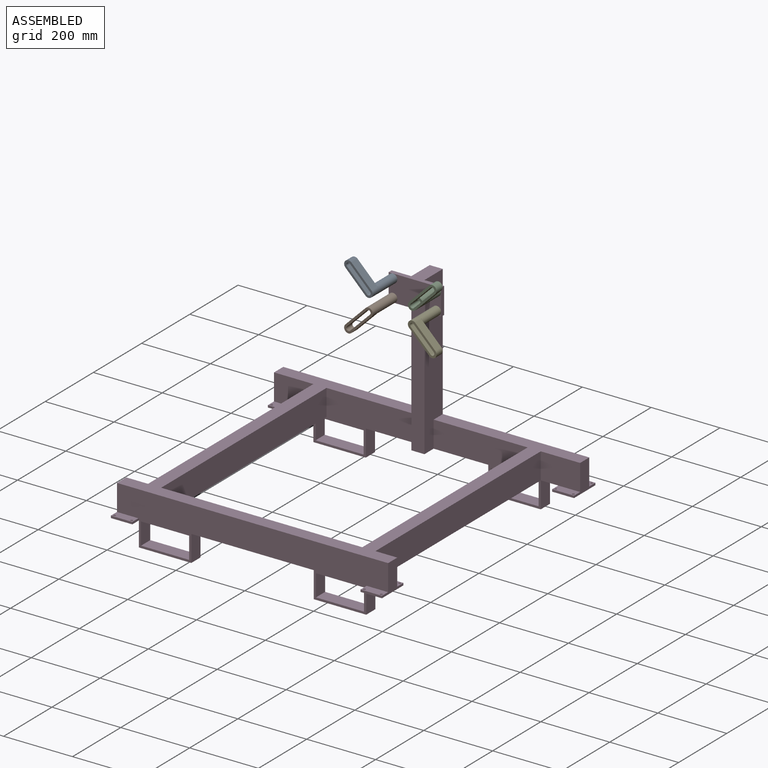
[diagram: assembled view]
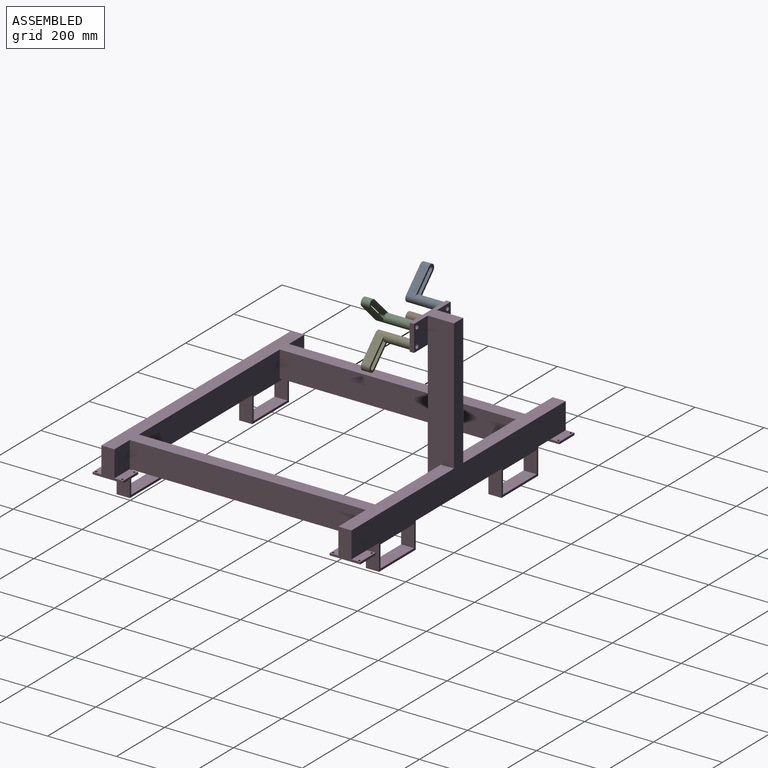
[diagram: assembled view, second angle]
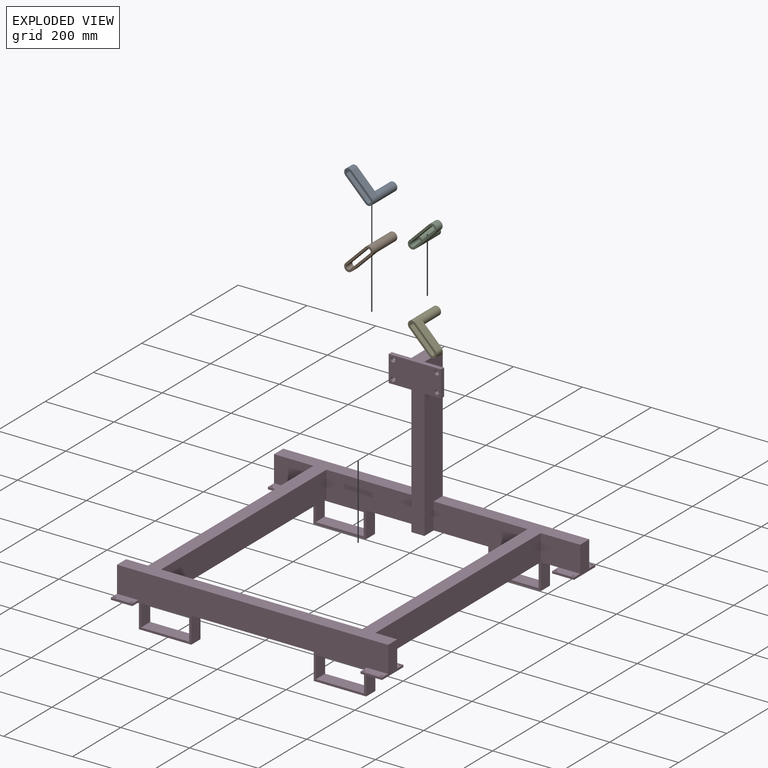
[diagram: exploded view]
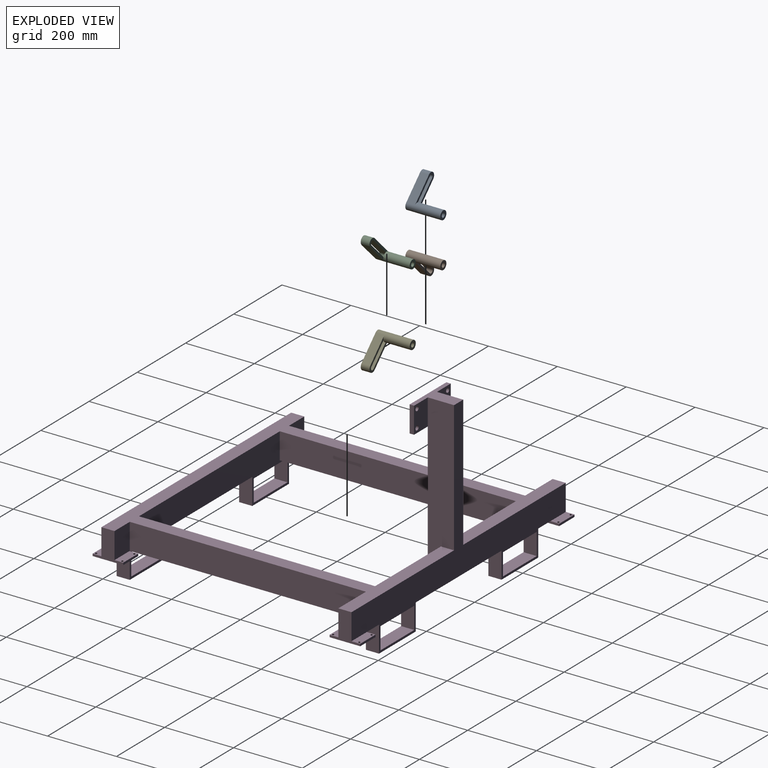
[diagram: exploded view, second angle]
ASSEMBLY  parts=5 mates=4
PART A: 14 faces, bbox 107.4x101.6x25.4 mm
  f0: plane 12.7x12.7mm, normal (0,-1,0), area 91mm2, adj f1,f2,f9,f11
  f1: cylinder r=6.35mm len=101.6mm, axis (0,-1,0), area 3547mm2, adj f0,f3,f9,f11,f13
  f2: cylinder r=12.7mm len=76.2mm, axis (0,-1,0), area 6080.5mm2, adj f0,f3,f4,f5
  f3: plane 25.4x25.4mm, normal (0,1,0), area 380mm2, adj f1,f2
  f4: plane 25.4x14.3mm, normal (0,-1,0), area 4.3mm2, adj f2,f6,f7,f8
  f5: plane 93.05x25.2mm, normal (0,1,0), area 1112.5mm2, adj f2,f6,f8,f9,f10,f11,f12
  f6: plane 82.05x25.4mm, normal (0,0,1), area 2084.1mm2, adj f4,f5,f7,f12,f13
  f7: cylinder r=12.6mm len=25.4mm, axis (0,1,0), area 1005.3mm2, adj f4,f6,f8,f13
  f8: plane 82.05x25.4mm, normal (0,0,-1), area 2084.1mm2, adj f4,f5,f7,f12,f13
  f9: plane 82.05x25.4mm, normal (0,0,-1), area 2084.1mm2, adj f0,f1,f5,f10,f13
  f10: cylinder r=6.35mm len=25.4mm, axis (0,1,0), area 506.7mm2, adj f5,f9,f11,f13
  f11: plane 82.05x25.4mm, normal (0,0,1), area 2084.1mm2, adj f0,f1,f5,f10,f13
  f12: cylinder r=12.6mm len=25.4mm, axis (0,1,0), area 1005.3mm2, adj f5,f6,f8,f13
  f13: plane 107.25x25.2mm, normal (0,-1,0), area 1397.3mm2, adj f1,f6,f7,f8,f9,f10,f11,f12
PART B: same geometry as A
PART C: same geometry as A
PART D: 108 faces, bbox 889x812.8x533.4 mm
  f0: plane 50.8x38.1mm, normal (0,0,-1), area 1935.5mm2, adj f4,f22,f55,f100
  f1: plane 381x38.1mm, normal (0,-1,0), area 14516.1mm2, adj f9,f73,f74,f80
  f2: plane 311.15x152.4mm, normal (0,-1,0), area 23548.3mm2, adj f3,f8,f9,f24,f54,f55,f56,f65
  f3: plane 889x762mm, normal (0,0,1), area 114677.2mm2, adj f2,f4,f5,f6,f7,f15,f16,f17
  f4: plane 889x533.4mm, normal (0,1,0), area 87741.8mm2, adj f0,f3,f9,f12,f48,f49,f50,f54
  f5: plane 787.4x152.4mm, normal (0,-1,0), area 65483.7mm2, adj f3,f10,f11,f13,f18,f19,f25,f35
  f6: plane 311.15x152.4mm, normal (0,-1,0), area 23548.3mm2, adj f3,f9,f14,f23,f48,f49,f50,f69
  f7: plane 660.4x152.4mm, normal (0,1,0), area 49999.9mm2, adj f3,f8,f10,f14,f23,f24,f45,f46
  f8: plane 685.8x38.1mm, normal (0,0,-1), area 26129mm2, adj f2,f7,f21,f24
  f9: plane 355.6x76.2mm, normal (0,0,-1), area 15000mm2, adj f1,f2,f4,f6,f49,f54,f73,f74
  f10: plane 355.6x38.1mm, normal (0,0,-1), area 13548.4mm2, adj f5,f7,f45,f51
  f11: plane 38.1x1.27mm, normal (0,0,-1), area 48.4mm2, adj f5,f20,f38,f52
  f12: plane 50.8x38.1mm, normal (0,0,-1), area 1935.5mm2, adj f4,f15,f48,f92
  f13: plane 38.1x1.27mm, normal (0,0,-1), area 48.4mm2, adj f5,f17,f28,f46
  f14: plane 685.8x38.1mm, normal (0,0,-1), area 26129mm2, adj f6,f7,f16,f23
  f15: plane 114.3x76.2mm, normal (0,-1,0), area 8709.7mm2, adj f3,f12,f16,f87,f97
  f16: plane 685.8x76.2mm, normal (-1,0,0), area 52258mm2, adj f3,f14,f15,f17
  f17: plane 76.2x63.5mm, normal (0,1,0), area 4838.7mm2, adj f3,f13,f16,f18,f26
  f18: plane 88.9x82.55mm, normal (-1,0,0), area 3467.7mm2, adj f3,f5,f17,f25,f26,f27,f29,f34
  f19: plane 88.9x82.55mm, normal (1,0,0), area 3467.7mm2, adj f3,f5,f20,f35,f36,f37,f42,f44
  f20: plane 76.2x63.5mm, normal (0,1,0), area 4838.7mm2, adj f3,f11,f19,f21,f36
  f21: plane 685.8x76.2mm, normal (1,0,0), area 52258mm2, adj f3,f8,f20,f22
  f22: plane 114.3x76.2mm, normal (0,-1,0), area 8709.7mm2, adj f0,f3,f21,f86,f107
  f23: plane 685.8x76.2mm, normal (1,0,0), area 52258mm2, adj f3,f6,f7,f14
  f24: plane 685.8x76.2mm, normal (-1,0,0), area 52258mm2, adj f2,f3,f7,f8
  f25: plane 62.23x25.4mm, normal (0,0,1), area 1517.3mm2, adj f5,f18,f28,f29,f31,f32
  f26: plane 62.23x25.4mm, normal (0,0,1), area 1517.3mm2, adj f17,f18,f27,f28,f30,f33
  f27: plane 62.23x6.35mm, normal (0,1,0), area 395.2mm2, adj f18,f26,f28,f34
  f28: plane 88.9x6.35mm, normal (1,0,0), area 564.5mm2, adj f13,f25,f26,f27,f29,f34
  f29: plane 62.23x6.35mm, normal (0,-1,0), area 395.2mm2, adj f18,f25,f28,f34
  f30: cylinder r=3.17mm len=6.35mm, axis (0,0,1), area 126.7mm2, adj f26,f34
  f31: cylinder r=3.17mm len=6.35mm, axis (0,0,1), area 126.7mm2, adj f25,f34
  f32: cylinder r=3.17mm len=6.35mm, axis (0,0,1), area 126.7mm2, adj f25,f34
  f33: cylinder r=3.17mm len=6.35mm, axis (0,0,1), area 126.7mm2, adj f26,f34
  f34: plane 88.9x62.23mm, normal (0,0,-1), area 5405.6mm2, adj f18,f27,f28,f29,f30,f31,f32,f33
  f35: plane 62.23x25.4mm, normal (0,0,1), area 1517.3mm2, adj f5,f19,f37,f38,f40,f41
  f36: plane 62.23x25.4mm, normal (0,0,1), area 1517.3mm2, adj f19,f20,f38,f39,f42,f43
  f37: plane 62.23x6.35mm, normal (0,-1,0), area 395.2mm2, adj f19,f35,f38,f44
  f38: plane 88.9x6.35mm, normal (-1,0,0), area 564.5mm2, adj f11,f35,f36,f37,f42,f44
  f39: cylinder r=3.17mm len=6.35mm, axis (0,0,1), area 126.7mm2, adj f36,f44
  f40: cylinder r=3.17mm len=6.35mm, axis (0,0,1), area 126.7mm2, adj f35,f44
  f41: cylinder r=3.17mm len=6.35mm, axis (0,0,1), area 126.7mm2, adj f35,f44
  f42: plane 62.23x6.35mm, normal (0,1,0), area 395.2mm2, adj f19,f36,f38,f44
  f43: cylinder r=3.17mm len=6.35mm, axis (0,0,1), area 126.7mm2, adj f36,f44
  f44: plane 88.9x62.23mm, normal (0,0,-1), area 5405.6mm2, adj f19,f37,f38,f39,f40,f41,f42,f43
  f45: plane 76.2x38.1mm, normal (1,0,0), area 2903.2mm2, adj f5,f7,f10,f47
  f46: plane 76.2x38.1mm, normal (-1,0,0), area 2903.2mm2, adj f5,f7,f13,f47
  f47: plane 152.4x38.1mm, normal (0,0,-1), area 5806.4mm2, adj f5,f7,f45,f46
  f48: plane 76.2x38.1mm, normal (-1,0,0), area 2903.2mm2, adj f4,f6,f12,f50
  f49: plane 76.2x38.1mm, normal (1,0,0), area 2903.2mm2, adj f4,f6,f9,f50
  f50: plane 152.4x38.1mm, normal (0,0,-1), area 5806.4mm2, adj f4,f6,f48,f49
  f51: plane 76.2x38.1mm, normal (-1,0,0), area 2903.2mm2, adj f5,f7,f10,f53
  f52: plane 76.2x38.1mm, normal (1,0,0), area 2903.2mm2, adj f5,f7,f11,f53
  f53: plane 152.4x38.1mm, normal (0,0,-1), area 5806.4mm2, adj f5,f7,f51,f52
  f54: plane 76.2x38.1mm, normal (-1,0,0), area 2903.2mm2, adj f2,f4,f9,f56
  f55: plane 76.2x38.1mm, normal (1,0,0), area 2903.2mm2, adj f0,f2,f4,f56
  f56: plane 152.4x38.1mm, normal (0,0,-1), area 5806.4mm2, adj f2,f4,f54,f55
  f57: plane 139.7x38.1mm, normal (0,0,-1), area 5322.6mm2, adj f5,f7,f58,f60
  f58: plane 63.5x38.1mm, normal (-1,0,0), area 2419.4mm2, adj f5,f7,f57,f59
  f59: plane 139.7x38.1mm, normal (0,0,1), area 5322.6mm2, adj f5,f7,f58,f60
  f60: plane 63.5x38.1mm, normal (1,0,0), area 2419.4mm2, adj f5,f7,f57,f59
  f61: plane 63.5x38.1mm, normal (1,0,0), area 2419.4mm2, adj f5,f7,f62,f64
  f62: plane 139.7x38.1mm, normal (0,0,-1), area 5322.6mm2, adj f5,f7,f61,f63
  f63: plane 63.5x38.1mm, normal (-1,0,0), area 2419.4mm2, adj f5,f7,f62,f64
  f64: plane 139.7x38.1mm, normal (0,0,1), area 5322.6mm2, adj f5,f7,f61,f63
  f65: plane 63.5x38.1mm, normal (1,0,0), area 2419.4mm2, adj f2,f4,f66,f68
  f66: plane 139.7x38.1mm, normal (0,0,1), area 5322.6mm2, adj f2,f4,f65,f67
  f67: plane 63.5x38.1mm, normal (-1,0,0), area 2419.4mm2, adj f2,f4,f66,f68
  f68: plane 139.7x38.1mm, normal (0,0,-1), area 5322.6mm2, adj f2,f4,f65,f67
  f69: plane 139.7x38.1mm, normal (0,0,1), area 5322.6mm2, adj f4,f6,f70,f72
  f70: plane 63.5x38.1mm, normal (-1,0,0), area 2419.4mm2, adj f4,f6,f69,f71
  f71: plane 139.7x38.1mm, normal (0,0,-1), area 5322.6mm2, adj f4,f6,f70,f72
  f72: plane 63.5x38.1mm, normal (1,0,0), area 2419.4mm2, adj f4,f6,f69,f71
  f73: plane 457.2x76.2mm, normal (1,0,0), area 31935.4mm2, adj f1,f2,f3,f4,f9,f75,f85
  f74: plane 457.2x76.2mm, normal (-1,0,0), area 31935.4mm2, adj f1,f3,f4,f6,f9,f75,f76
  f75: plane 152.4x88.9mm, normal (0,0,1), area 4838.7mm2, adj f4,f73,f74,f76,f77,f78,f84,f85
  f76: plane 76.2x57.15mm, normal (0,1,0), area 4101.5mm2, adj f74,f75,f78,f79,f80,f83
  f77: plane 76.2x12.7mm, normal (1,0,0), area 967.7mm2, adj f75,f80,f84,f85
  f78: plane 76.2x12.7mm, normal (-1,0,0), area 967.7mm2, adj f75,f76,f80,f84
  f79: cylinder r=6.35mm len=12.7mm, axis (0,1,0), area 506.7mm2, adj f76,f84
  f80: plane 152.4x12.7mm, normal (0,0,-1), area 1935.5mm2, adj f1,f76,f77,f78,f84,f85
  f81: cylinder r=6.35mm len=12.7mm, axis (0,1,0), area 506.7mm2, adj f84,f85
  f82: cylinder r=6.35mm len=12.7mm, axis (0,1,0), area 506.7mm2, adj f84,f85
  f83: cylinder r=6.35mm len=12.7mm, axis (0,1,0), area 506.7mm2, adj f76,f84
  f84: plane 152.4x76.2mm, normal (0,-1,0), area 11106.2mm2, adj f75,f77,f78,f79,f80,f81,f82,f83
  f85: plane 76.2x57.15mm, normal (0,1,0), area 4101.5mm2, adj f73,f75,f77,f80,f81,f82
  f86: plane 88.9x82.55mm, normal (1,0,0), area 3467.7mm2, adj f3,f4,f22,f98,f99,f104,f106,f107
  f87: plane 88.9x82.55mm, normal (-1,0,0), area 3467.7mm2, adj f3,f4,f15,f88,f89,f90,f96,f97
  f88: plane 63.5x25.4mm, normal (0,0,1), area 1549.6mm2, adj f4,f87,f90,f91,f92,f95
  f89: plane 63.5x6.35mm, normal (0,-1,0), area 403.2mm2, adj f87,f92,f96,f97
  f90: plane 63.5x6.35mm, normal (0,1,0), area 403.2mm2, adj f87,f88,f92,f96
  f91: cylinder r=3.17mm len=6.35mm, axis (0,0,1), area 126.7mm2, adj f88,f96
  f92: plane 88.9x6.35mm, normal (1,0,0), area 564.5mm2, adj f12,f88,f89,f90,f96,f97
  f93: cylinder r=3.17mm len=6.35mm, axis (0,0,1), area 126.7mm2, adj f96,f97
  f94: cylinder r=3.17mm len=6.35mm, axis (0,0,1), area 126.7mm2, adj f96,f97
  f95: cylinder r=3.17mm len=6.35mm, axis (0,0,1), area 126.7mm2, adj f88,f96
  f96: plane 88.9x63.5mm, normal (0,0,-1), area 5518.5mm2, adj f87,f89,f90,f91,f92,f93,f94,f95
  f97: plane 63.5x25.4mm, normal (0,0,1), area 1549.6mm2, adj f15,f87,f89,f92,f93,f94
  f98: plane 63.5x25.4mm, normal (0,0,1), area 1549.6mm2, adj f4,f86,f100,f101,f103,f104
  f99: plane 63.5x6.35mm, normal (0,-1,0), area 403.2mm2, adj f86,f100,f106,f107
  f100: plane 88.9x6.35mm, normal (-1,0,0), area 564.5mm2, adj f0,f98,f99,f104,f106,f107
  f101: cylinder r=3.17mm len=6.35mm, axis (0,0,1), area 126.7mm2, adj f98,f106
  f102: cylinder r=3.17mm len=6.35mm, axis (0,0,1), area 126.7mm2, adj f106,f107
  f103: cylinder r=3.17mm len=6.35mm, axis (0,0,1), area 126.7mm2, adj f98,f106
  f104: plane 63.5x6.35mm, normal (0,1,0), area 403.2mm2, adj f86,f98,f100,f106
  f105: cylinder r=3.17mm len=6.35mm, axis (0,0,1), area 126.7mm2, adj f106,f107
  f106: plane 88.9x63.5mm, normal (0,0,-1), area 5518.5mm2, adj f86,f99,f100,f101,f102,f103,f104,f105
  f107: plane 63.5x25.4mm, normal (0,0,1), area 1549.6mm2, adj f22,f86,f99,f100,f102,f105
PART E: same geometry as A
PLACE A rot(axis=(0,-1,0),135deg) t=(-1190.62,-360.44,313.78)mm
PLACE B rot(axis=(0,1,0),135deg) t=(-1190.62,-360.44,262.98)mm
PLACE C rot(axis=(0,-1,0),45deg) t=(-1063.62,-360.44,313.78)mm
PLACE D t=(-1127.12,-576.34,-130.72)mm
PLACE E rot(axis=(0,1,0),45deg) t=(-1063.62,-360.44,262.98)mm
MATE revolute D.f82 <-> E.f2  axis (0,-1,0) through (-1063.62,-284.24,262.98)mm
MATE revolute D.f83 <-> A.f1  axis (0,1,0) through (-1190.62,-284.24,313.78)mm
MATE revolute D.f81 <-> C.f1  axis (0,-1,0) through (-1063.62,-284.24,313.78)mm
MATE revolute D.f79 <-> B.f1  axis (0,-1,0) through (-1190.62,-284.24,262.98)mm
